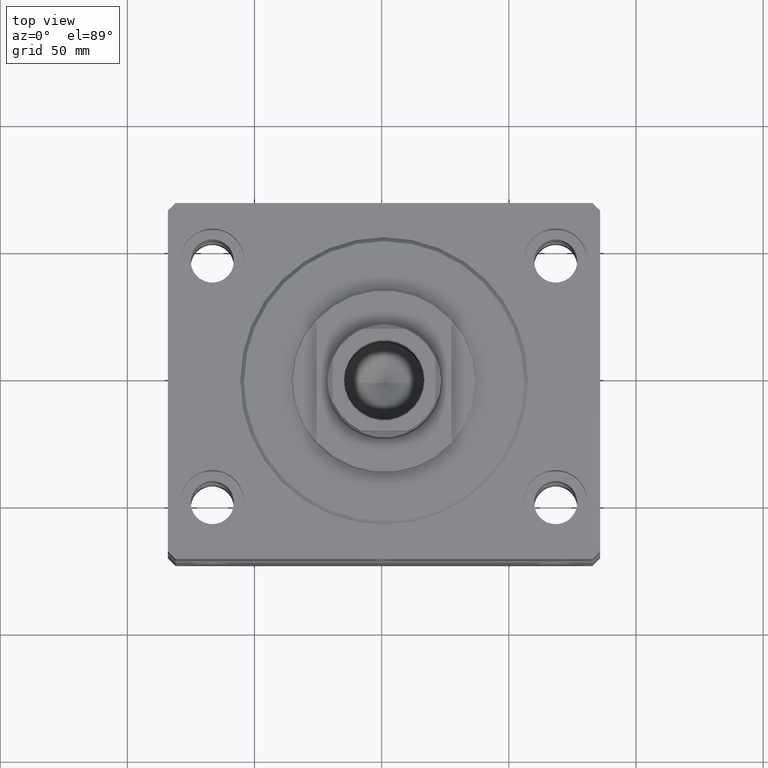
[diagram: clean part render]
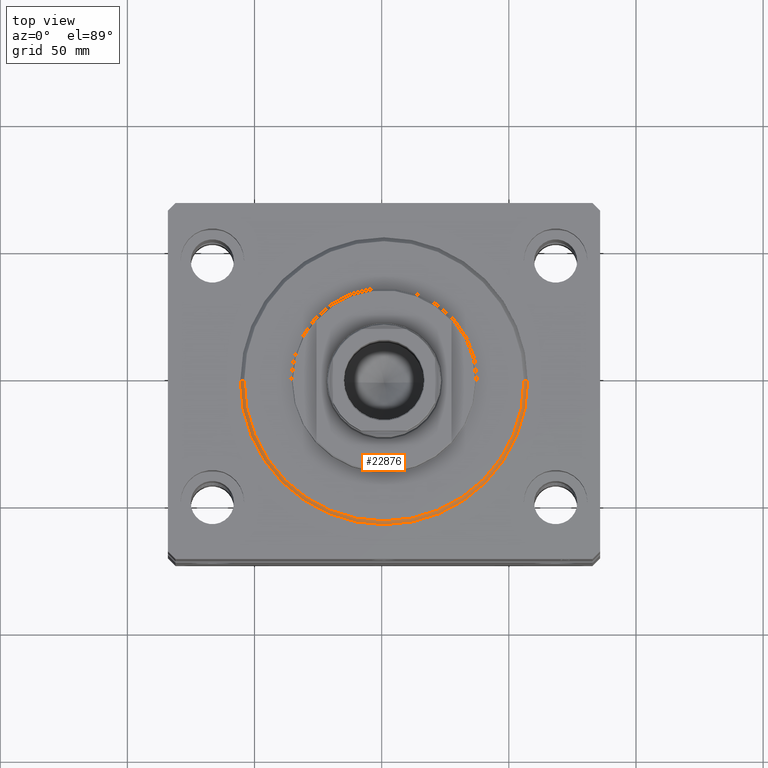
[diagram: same view with one face highlighted and labeled with its STEP entity id]
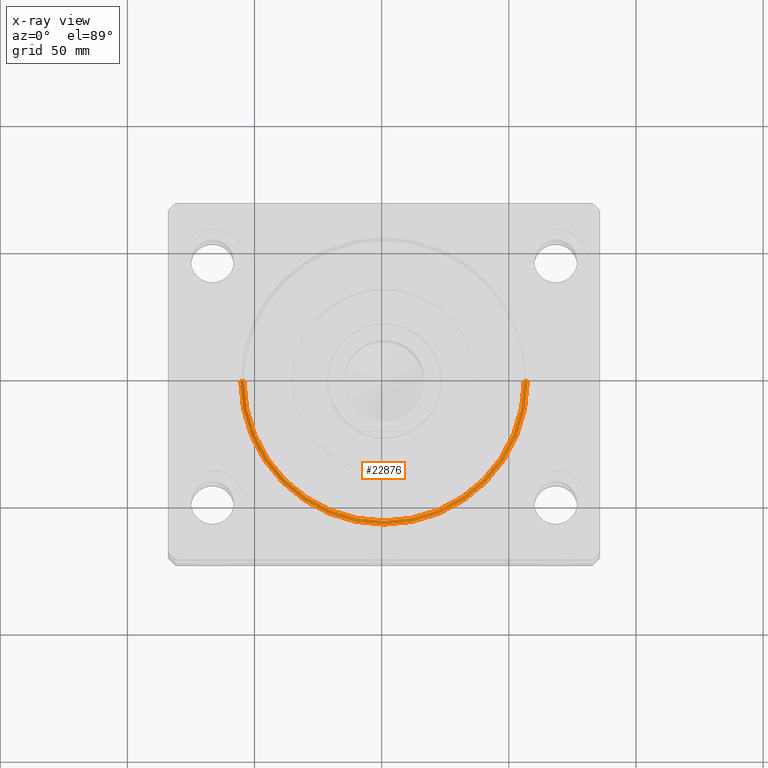
[diagram: x-ray of the same camera — body ghosted, the highlighted face saturated]
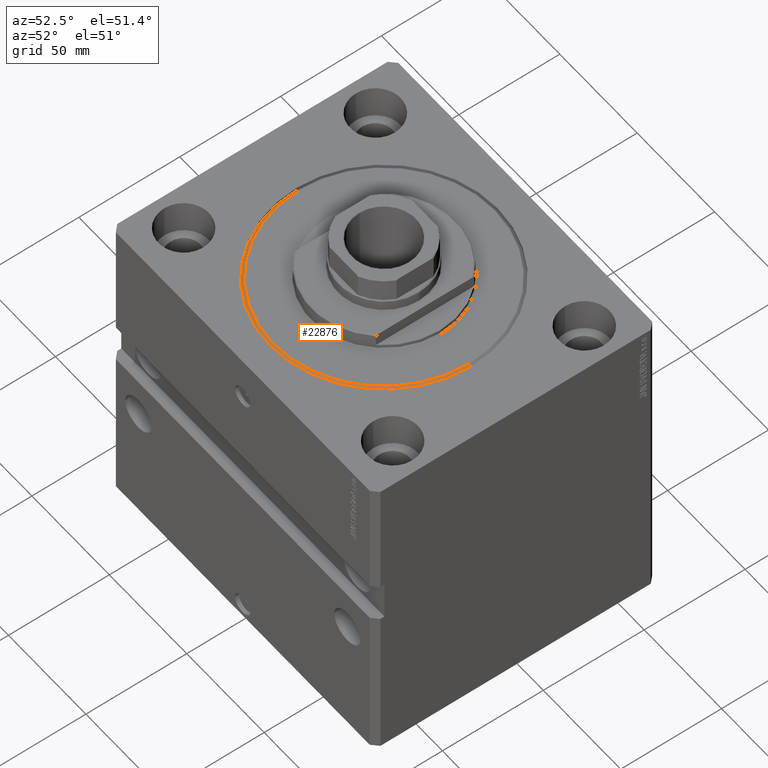
[diagram: same view with one face highlighted and labeled with its STEP entity id]
A machine part, top view. The second image highlights one B-rep face of the part: STEP entity #22876.
The next image is the same camera in x-ray: the body ghosted, the highlighted face saturated — about 0% of this face is hidden behind the body in this view.
A second angle (auxiliary view) of the same face is appended — the face is thin or edge-on in the first view.
In plain terms, the highlighted conical surface has half-angle 45 deg.
Its self-contained STEP definition (entity closure, byte-faithful):
#1514 = CONICAL_SURFACE ( 'NONE', #36628, 56.50000000000000711, 0.7853981633974460586 ) ;
#1682 = DIRECTION ( 'NONE',  ( -0.000000000000000000, -0.000000000000000000, -1.000000000000000000 ) ) ;
#3139 = DIRECTION ( 'NONE',  ( 0.7071067811865459074, 0.000000000000000000, 0.7071067811865491270 ) ) ;
#5007 = EDGE_CURVE ( 'NONE', #21285, #41090, #33859, .T. ) ;
#5302 = VERTEX_POINT ( 'NONE', #20170 ) ;
#5974 = EDGE_LOOP ( 'NONE', ( #31701, #12683, #25693, #37246 ) ) ;
#8248 = AXIS2_PLACEMENT_3D ( 'NONE', #21263, #24774, #25688 ) ;
#9733 = CIRCLE ( 'NONE', #8248, 56.50000000000000711 ) ;
#9765 = CARTESIAN_POINT ( 'NONE',  ( 56.50000000000000711, 6.919254415182546126E-15, 1.499999999999994449 ) ) ;
#11563 = VECTOR ( 'NONE', #3139, 1000.000000000000000 ) ;
#12683 = ORIENTED_EDGE ( 'NONE', *, *, #42079, .F. ) ;
#14138 = VECTOR ( 'NONE', #30485, 1000.000000000000000 ) ;
#16060 = EDGE_CURVE ( 'NONE', #5302, #33075, #33538, .T. ) ;
#17263 = CIRCLE ( 'NONE', #43378, 55.00000000000002132 ) ;
#18982 = DIRECTION ( 'NONE',  ( 1.000000000000000000, 0.000000000000000000, 0.000000000000000000 ) ) ;
#20170 = CARTESIAN_POINT ( 'NONE',  ( -55.00000000000002132, 6.827405905246496343E-15, 0.000000000000000000 ) ) ;
#21263 = CARTESIAN_POINT ( 'NONE',  ( 0.000000000000000000, 0.000000000000000000, 1.499999999999994449 ) ) ;
#21285 = VERTEX_POINT ( 'NONE', #40240 ) ;
#22500 = CARTESIAN_POINT ( 'NONE',  ( 0.000000000000000000, 0.000000000000000000, 1.499999999999994449 ) ) ;
#22782 = CARTESIAN_POINT ( 'NONE',  ( -56.50000000000000711, 6.919254415182546126E-15, 1.499999999999994449 ) ) ;
#22876 = ADVANCED_FACE ( 'NONE', ( #40256 ), #1514, .T. ) ;
#23491 = EDGE_CURVE ( 'NONE', #33075, #41090, #9733, .T. ) ;
#24774 = DIRECTION ( 'NONE',  ( -0.000000000000000000, -0.000000000000000000, 1.000000000000000000 ) ) ;
#25688 = DIRECTION ( 'NONE',  ( 1.000000000000000000, 0.000000000000000000, 0.000000000000000000 ) ) ;
#25693 = ORIENTED_EDGE ( 'NONE', *, *, #5007, .T. ) ;
#26701 = DIRECTION ( 'NONE',  ( 1.000000000000000000, 0.000000000000000000, 0.000000000000000000 ) ) ;
#27695 = CARTESIAN_POINT ( 'NONE',  ( -56.50000000000000711, 0.000000000000000000, 1.499999999999994449 ) ) ;
#30485 = DIRECTION ( 'NONE',  ( -0.7071067811865459074, 8.659560562354911904E-17, 0.7071067811865491270 ) ) ;
#31701 = ORIENTED_EDGE ( 'NONE', *, *, #16060, .F. ) ;
#33075 = VERTEX_POINT ( 'NONE', #27695 ) ;
#33538 = LINE ( 'NONE', #22782, #14138 ) ;
#33859 = LINE ( 'NONE', #38669, #11563 ) ;
#34618 = CARTESIAN_POINT ( 'NONE',  ( 0.000000000000000000, 0.000000000000000000, 0.000000000000000000 ) ) ;
#36628 = AXIS2_PLACEMENT_3D ( 'NONE', #22500, #36762, #18982 ) ;
#36762 = DIRECTION ( 'NONE',  ( -0.000000000000000000, -0.000000000000000000, 1.000000000000000000 ) ) ;
#37246 = ORIENTED_EDGE ( 'NONE', *, *, #23491, .F. ) ;
#38669 = CARTESIAN_POINT ( 'NONE',  ( 56.50000000000000711, 0.000000000000000000, 1.499999999999994449 ) ) ;
#40240 = CARTESIAN_POINT ( 'NONE',  ( 55.00000000000002132, 0.000000000000000000, 0.000000000000000000 ) ) ;
#40256 = FACE_OUTER_BOUND ( 'NONE', #5974, .T. ) ;
#41090 = VERTEX_POINT ( 'NONE', #9765 ) ;
#42079 = EDGE_CURVE ( 'NONE', #21285, #5302, #17263, .T. ) ;
#43378 = AXIS2_PLACEMENT_3D ( 'NONE', #34618, #1682, #26701 ) ;